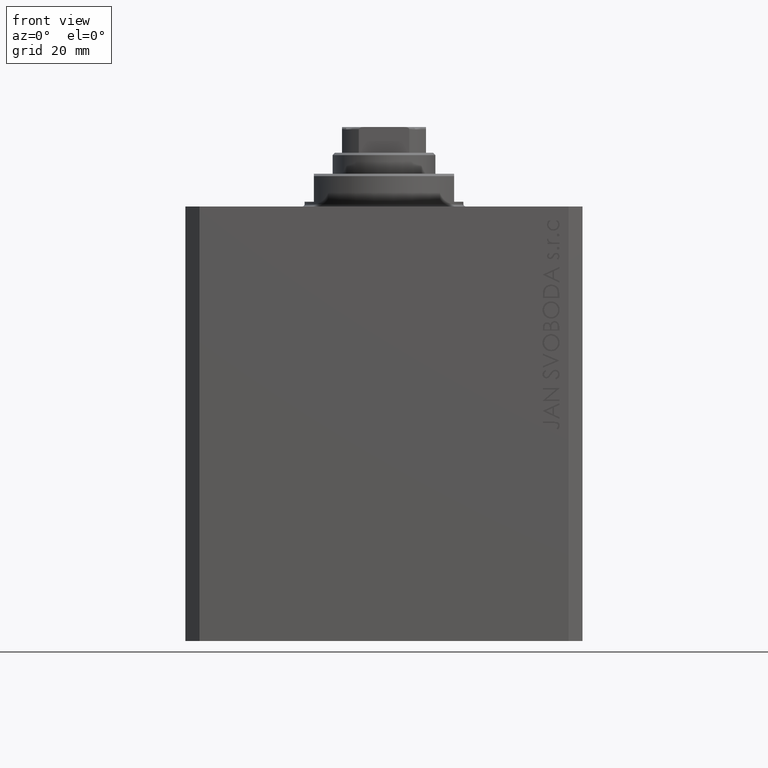
[diagram: clean part render]
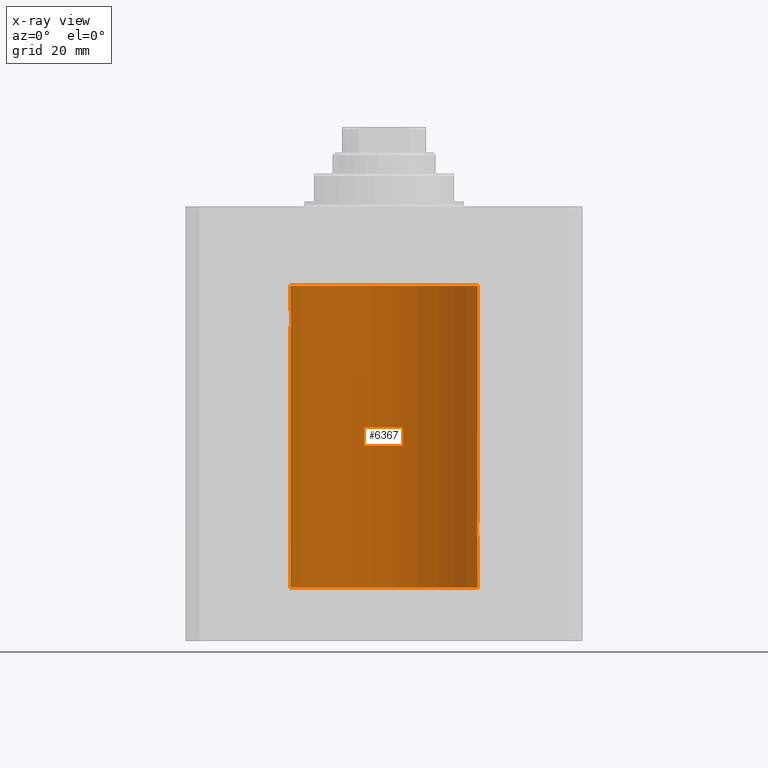
[diagram: x-ray — body ghosted, one internal face saturated and labeled with its STEP entity id]
A machine part, front view, then the same camera in x-ray: the body is ghosted and one INTERNAL B-rep face — a face not visible from any outside direction — is saturated and labeled: STEP entity #6367.
In plain terms, the highlighted cylindrical surface (partial cylindrical patch) has radius 20 mm, axis along (0, 0, 1).
Its self-contained STEP definition (entity closure, byte-faithful):
#251 = CARTESIAN_POINT ( 'NONE',  ( -20.00000000000000000, 2.449293598294706513E-15, -81.59999999999999432 ) ) ;
#529 = ORIENTED_EDGE ( 'NONE', *, *, #35956, .T. ) ;
#2824 = CARTESIAN_POINT ( 'NONE',  ( -19.99365919015135518, 0.5196544277756711683, -25.93573148867292133 ) ) ;
#3187 = EDGE_CURVE ( 'NONE', #25908, #39715, #12734, .T. ) ;
#3831 = CARTESIAN_POINT ( 'NONE',  ( 19.89974874213236689, 2.000000000000336620, -69.26114132155832692 ) ) ;
#4412 = CARTESIAN_POINT ( 'NONE',  ( 20.00000000000000000, 0.1305404422160218736, -66.99999999999998579 ) ) ;
#5270 = VECTOR ( 'NONE', #24837, 1000.000000000000000 ) ;
#5714 = CARTESIAN_POINT ( 'NONE',  ( -19.95654117037011588, 1.321069663197671273, -25.50738641543989615 ) ) ;
#6367 = ADVANCED_FACE ( 'NONE', ( #13096 ), #38172, .F. ) ;
#6397 = VERTEX_POINT ( 'NONE', #16685 ) ;
#6822 = CARTESIAN_POINT ( 'NONE',  ( 19.93681418096177183, 1.590194273034202688, -67.78006300821553509 ) ) ;
#7781 = CARTESIAN_POINT ( 'NONE',  ( 19.90980722176544049, 1.897923463361389285, -68.35574535366808391 ) ) ;
#7791 = EDGE_CURVE ( 'NONE', #13081, #31878, #31178, .T. ) ;
#8141 = EDGE_CURVE ( 'NONE', #39715, #26374, #21749, .T. ) ;
#8422 = CARTESIAN_POINT ( 'NONE',  ( 19.89974874213236333, 2.000000000000336620, -69.00000000000000000 ) ) ;
#9068 = CARTESIAN_POINT ( 'NONE',  ( -19.93679350243183990, 1.590453176650918676, -25.21960275349743696 ) ) ;
#9536 = CARTESIAN_POINT ( 'NONE',  ( -19.98998539619404013, 0.6443418861413118259, -25.89789687358865322 ) ) ;
#9769 = CARTESIAN_POINT ( 'NONE',  ( -19.90978941500366872, 1.898109641280506521, -24.64371130639850804 ) ) ;
#10010 = CARTESIAN_POINT ( 'NONE',  ( -19.90610216711450420, 1.935912154109700190, -24.51899474186111050 ) ) ;
#10456 = ORIENTED_EDGE ( 'NONE', *, *, #29283, .T. ) ;
#10607 = VECTOR ( 'NONE', #40375, 1000.000000000000000 ) ;
#10978 = CARTESIAN_POINT ( 'NONE',  ( -20.00000000000000000, 2.449293598294706513E-15, -17.00000000000000000 ) ) ;
#11132 = CARTESIAN_POINT ( 'NONE',  ( 19.89974874213236333, 2.000000000000336620, -69.00000000000000000 ) ) ;
#11273 = DIRECTION ( 'NONE',  ( 1.000000000000000000, 0.000000000000000000, 0.000000000000000000 ) ) ;
#11557 = CARTESIAN_POINT ( 'NONE',  ( 20.00000000000000000, 0.000000000000000000, -81.59999999999999432 ) ) ;
#11781 = CARTESIAN_POINT ( 'NONE',  ( 20.00000000000000000, 1.967327733996653312E-15, -71.00000000000001421 ) ) ;
#12253 = CARTESIAN_POINT ( 'NONE',  ( 19.95643710845398999, 1.322557776536547047, -70.50593841146687168 ) ) ;
#12292 = CARTESIAN_POINT ( 'NONE',  ( -20.00000000000000000, 2.449293598294706513E-15, -81.59999999999999432 ) ) ;
#12388 = ORIENTED_EDGE ( 'NONE', *, *, #8141, .F. ) ;
#12637 = CARTESIAN_POINT ( 'NONE',  ( -19.90522393307484705, 1.947330458682957177, -23.47486091545001941 ) ) ;
#12734 = CIRCLE ( 'NONE', #25727, 20.00000000000000000 ) ;
#13081 = VERTEX_POINT ( 'NONE', #39564 ) ;
#13096 = FACE_OUTER_BOUND ( 'NONE', #29619, .T. ) ;
#13117 = CARTESIAN_POINT ( 'NONE',  ( -19.90106552791689154, 1.987020435121076734, -24.26241417820002155 ) ) ;
#13351 = CARTESIAN_POINT ( 'NONE',  ( -19.95645382900617903, 1.322305185229311064, -22.49384229619286657 ) ) ;
#13590 = CARTESIAN_POINT ( 'NONE',  ( -19.92373272380676497, 1.747830109444745927, -22.99354240926169624 ) ) ;
#14688 = ORIENTED_EDGE ( 'NONE', *, *, #28885, .F. ) ;
#15840 = CARTESIAN_POINT ( 'NONE',  ( 19.98995738555794688, 0.6452086089795042723, -70.89760345360159022 ) ) ;
#15960 = B_SPLINE_CURVE_WITH_KNOTS ( 'NONE', 3,
 ( #11781, #33978, #26332, #40895, #15840, #22759, #44942, #22990, #12253, #21513, #25074, #25792, #3831, #26017 ),
 .UNSPECIFIED., .F., .F.,
 ( 4, 2, 2, 2, 2, 2, 4 ),
 ( 1.911692756536875168E-18, 0.0003911418372936038769, 0.0007822836745872059107, 0.001173425511880807782, 0.001564567349174409870, 0.002346851023761584772, 0.003129134698348759892 ),
 .UNSPECIFIED. ) ;
#16685 = CARTESIAN_POINT ( 'NONE',  ( -20.00000000000000000, -1.269718202421245235E-16, -22.00000000000000000 ) ) ;
#17812 = CARTESIAN_POINT ( 'NONE',  ( 19.98071536551674754, 0.8863972468204365240, -67.20236805399484581 ) ) ;
#17932 = LINE ( 'NONE', #32985, #5270 ) ;
#18082 = VECTOR ( 'NONE', #26137, 1000.000000000000000 ) ;
#20050 = CARTESIAN_POINT ( 'NONE',  ( -19.99867931558985745, 0.2631998640366461362, -25.98691292011447374 ) ) ;
#20512 = CARTESIAN_POINT ( 'NONE',  ( -19.97510079925438475, 1.003547732426807171, -25.73489454601984150 ) ) ;
#20985 = CARTESIAN_POINT ( 'NONE',  ( -19.94330239452387232, 1.507796451871729504, -25.32060165083834136 ) ) ;
#21396 = CARTESIAN_POINT ( 'NONE',  ( 19.96305842179988588, 1.219858681717333138, -67.40974712539563996 ) ) ;
#21513 = CARTESIAN_POINT ( 'NONE',  ( 19.93682487288204541, 1.599118048130817149, -70.22917035181221479 ) ) ;
#21749 = LINE ( 'NONE', #251, #10607 ) ;
#22337 = CARTESIAN_POINT ( 'NONE',  ( 19.91911433329477177, 1.797615436563606561, -68.11357106075777779 ) ) ;
#22759 = CARTESIAN_POINT ( 'NONE',  ( 19.98066923111604964, 0.8874387315505228857, -70.79712145220240416 ) ) ;
#22990 = CARTESIAN_POINT ( 'NONE',  ( 19.96307037068151757, 1.219701915132744841, -70.59041349350364669 ) ) ;
#23822 = DIRECTION ( 'NONE',  ( 1.000000000000000000, 0.000000000000000000, 0.000000000000000000 ) ) ;
#23862 = CARTESIAN_POINT ( 'NONE',  ( -20.00000000000000000, 2.449293582768784389E-15, -25.99999999999999645 ) ) ;
#24314 = CARTESIAN_POINT ( 'NONE',  ( -19.96308513509966787, 1.219458756546270672, -22.40940266542446935 ) ) ;
#24548 = CARTESIAN_POINT ( 'NONE',  ( -19.99370013622814568, 0.5179893069484621249, -22.06384771616670903 ) ) ;
#24837 = DIRECTION ( 'NONE',  ( -0.000000000000000000, -0.000000000000000000, 1.000000000000000000 ) ) ;
#24952 = CARTESIAN_POINT ( 'NONE',  ( 19.90107458412648711, 1.986930174329755161, -68.73692013941790435 ) ) ;
#25074 = CARTESIAN_POINT ( 'NONE',  ( 19.92371056170336274, 1.748080295468898537, -70.00603865937250703 ) ) ;
#25671 = CARTESIAN_POINT ( 'NONE',  ( 19.92473605353366040, 1.734984354167257159, -67.99660905888589468 ) ) ;
#25727 = AXIS2_PLACEMENT_3D ( 'NONE', #36589, #39928, #11273 ) ;
#25792 = CARTESIAN_POINT ( 'NONE',  ( 19.90520750556430229, 1.947496194184494378, -69.52455416993456083 ) ) ;
#25908 = VERTEX_POINT ( 'NONE', #11557 ) ;
#26017 = CARTESIAN_POINT ( 'NONE',  ( 19.89974874213236333, 2.000000000000336620, -69.00000000000000000 ) ) ;
#26137 = DIRECTION ( 'NONE',  ( -0.000000000000000000, -0.000000000000000000, 1.000000000000000000 ) ) ;
#26332 = CARTESIAN_POINT ( 'NONE',  ( 19.99868904672146641, 0.2623009746877876802, -70.98700898509812873 ) ) ;
#26370 = DIRECTION ( 'NONE',  ( 1.000000000000000000, 0.000000000000000000, 0.000000000000000000 ) ) ;
#26374 = VERTEX_POINT ( 'NONE', #23862 ) ;
#27645 = DIRECTION ( 'NONE',  ( -0.000000000000000000, -0.000000000000000000, 1.000000000000000000 ) ) ;
#28122 = VECTOR ( 'NONE', #30662, 1000.000000000000000 ) ;
#28143 = CARTESIAN_POINT ( 'NONE',  ( -20.00000000000000000, -1.269718202421245235E-16, -22.00000000000000000 ) ) ;
#28374 = ORIENTED_EDGE ( 'NONE', *, *, #3187, .F. ) ;
#28777 = CARTESIAN_POINT ( 'NONE',  ( 19.99366205580918887, 0.5195372307044503479, -67.06423906555804137 ) ) ;
#28885 = EDGE_CURVE ( 'NONE', #6397, #31878, #44981, .T. ) ;
#29283 = EDGE_CURVE ( 'NONE', #25908, #42227, #17932, .T. ) ;
#29619 = EDGE_LOOP ( 'NONE', ( #12388, #28374, #10456, #44073, #33549, #529, #42468, #14688, #41985 ) ) ;
#30662 = DIRECTION ( 'NONE',  ( -0.000000000000000000, -0.000000000000000000, 1.000000000000000000 ) ) ;
#31178 = CIRCLE ( 'NONE', #41847, 20.00000000000000000 ) ;
#31260 = CARTESIAN_POINT ( 'NONE',  ( -19.93684595445884611, 1.598854313793185655, -22.77049887769366521 ) ) ;
#31735 = CARTESIAN_POINT ( 'NONE',  ( -19.99868965376115071, 0.2622407139811102628, -22.01298505384673732 ) ) ;
#31878 = VERTEX_POINT ( 'NONE', #10978 ) ;
#31973 = CARTESIAN_POINT ( 'NONE',  ( -19.98996196681220638, 0.6450624715427617506, -22.10234886833925572 ) ) ;
#32374 = CARTESIAN_POINT ( 'NONE',  ( 19.98998987637478209, 0.6441982143731844745, -67.10205654639887030 ) ) ;
#32612 = CARTESIAN_POINT ( 'NONE',  ( 19.89974874213236689, 2.000000000000336620, -68.86948983741757502 ) ) ;
#32858 = LINE ( 'NONE', #40250, #18082 ) ;
#32985 = CARTESIAN_POINT ( 'NONE',  ( 20.00000000000000000, 0.000000000000000000, -81.59999999999999432 ) ) ;
#33549 = ORIENTED_EDGE ( 'NONE', *, *, #39678, .T. ) ;
#33978 = CARTESIAN_POINT ( 'NONE',  ( 20.00000000000000000, 0.1322642052205942886, -71.00000000000005684 ) ) ;
#34604 = CARTESIAN_POINT ( 'NONE',  ( -19.99999999999999645, 0.1322335637814733289, -21.99999999999999645 ) ) ;
#34836 = CARTESIAN_POINT ( 'NONE',  ( -19.96304379627741454, 1.220099331833899736, -25.59007067689674386 ) ) ;
#34875 = CARTESIAN_POINT ( 'NONE',  ( 20.00000000000000000, -1.553109350199128042E-23, -67.00000000000000000 ) ) ;
#35079 = CARTESIAN_POINT ( 'NONE',  ( -19.91909332229799290, 1.797847595792767317, -24.88596189455837759 ) ) ;
#35546 = CARTESIAN_POINT ( 'NONE',  ( -19.92471474456649716, 1.735228749583835439, -25.00297226784954674 ) ) ;
#35592 = CARTESIAN_POINT ( 'NONE',  ( 20.00000000000000000, 1.967327733996653312E-15, -71.00000000000001421 ) ) ;
#35954 = CARTESIAN_POINT ( 'NONE',  ( 19.97511131722831479, 1.003336743019912936, -67.26498565174387068 ) ) ;
#35956 = EDGE_CURVE ( 'NONE', #41391, #13081, #32858, .T. ) ;
#36589 = CARTESIAN_POINT ( 'NONE',  ( 0.000000000000000000, 0.000000000000000000, -81.59999999999999432 ) ) ;
#36914 = CARTESIAN_POINT ( 'NONE',  ( 19.94332236886613074, 1.507531922383789524, -67.67909949904073130 ) ) ;
#37832 = CARTESIAN_POINT ( 'NONE',  ( -20.00000000000000000, 2.449293598294706513E-15, -81.59999999999999432 ) ) ;
#38172 = CYLINDRICAL_SURFACE ( 'NONE', #44094, 20.00000000000000000 ) ;
#38193 = CARTESIAN_POINT ( 'NONE',  ( -19.89974399317116394, 2.000047251570890250, -24.12981181290706445 ) ) ;
#38880 = CARTESIAN_POINT ( 'NONE',  ( 0.000000000000000000, 0.000000000000000000, -81.59999999999999432 ) ) ;
#39135 = CARTESIAN_POINT ( 'NONE',  ( -20.00000000000000000, 2.449293582768784389E-15, -25.99999999999999645 ) ) ;
#39564 = CARTESIAN_POINT ( 'NONE',  ( 20.00000000000000000, 0.000000000000000000, -17.00000000000000000 ) ) ;
#39678 = EDGE_CURVE ( 'NONE', #44104, #41391, #44447, .T. ) ;
#39715 = VERTEX_POINT ( 'NONE', #37832 ) ;
#39928 = DIRECTION ( 'NONE',  ( 0.000000000000000000, 0.000000000000000000, 1.000000000000000000 ) ) ;
#40250 = CARTESIAN_POINT ( 'NONE',  ( 20.00000000000000000, 0.000000000000000000, -81.59999999999999432 ) ) ;
#40375 = DIRECTION ( 'NONE',  ( -0.000000000000000000, -0.000000000000000000, 1.000000000000000000 ) ) ;
#40492 = CARTESIAN_POINT ( 'NONE',  ( 19.90611763847108762, 1.935753518394741635, -68.48042243434849752 ) ) ;
#40895 = CARTESIAN_POINT ( 'NONE',  ( 19.99369727434158506, 0.5181068333511539281, -70.93612288282997724 ) ) ;
#41391 = VERTEX_POINT ( 'NONE', #34875 ) ;
#41763 = CARTESIAN_POINT ( 'NONE',  ( -19.98067755938510714, 0.8872481584516758168, -22.20278656943303375 ) ) ;
#41821 = DIRECTION ( 'NONE',  ( 0.000000000000000000, 0.000000000000000000, 1.000000000000000000 ) ) ;
#41847 = AXIS2_PLACEMENT_3D ( 'NONE', #44513, #41821, #26370 ) ;
#41985 = ORIENTED_EDGE ( 'NONE', *, *, #43217, .T. ) ;
#42227 = VERTEX_POINT ( 'NONE', #35592 ) ;
#42230 = CARTESIAN_POINT ( 'NONE',  ( -19.98070694681040038, 0.8865903856744316025, -25.79753901127162763 ) ) ;
#42468 = ORIENTED_EDGE ( 'NONE', *, *, #7791, .T. ) ;
#42704 = CARTESIAN_POINT ( 'NONE',  ( -19.99999999999999645, 0.1305706983324449733, -25.99999999999998934 ) ) ;
#43217 = EDGE_CURVE ( 'NONE', #6397, #26374, #43435, .T. ) ;
#43344 = CARTESIAN_POINT ( 'NONE',  ( 19.99867993937906618, 0.2631387813862826053, -67.01308095003093968 ) ) ;
#43435 = B_SPLINE_CURVE_WITH_KNOTS ( 'NONE', 3,
 ( #28143, #34604, #31735, #24548, #31973, #41763, #46267, #24314, #13351, #31260, #13590, #12637, #45807, #38193, #13117, #10010, #9769, #35079, #35546, #9068, #20985, #5714, #34836, #20512, #42230, #9536, #2824, #20050, #42704, #39135 ),
 .UNSPECIFIED., .F., .F.,
 ( 4, 2, 2, 2, 2, 2, 2, 2, 2, 2, 2, 2, 2, 2, 4 ),
 ( 1.233811249882840126E-19, 0.0003910512220831129202, 0.0007821024441662257319, 0.001173153666249338381, 0.001564204888332450813, 0.002346307332498675461, 0.003128409776664900326, 0.003519460998748018179, 0.003910512220831135165, 0.004301563442914253452, 0.004692614664997370871, 0.005083665887080488291, 0.005474717109163606578, 0.005865768331246723997, 0.006256819553329842284 ),
 .UNSPECIFIED. ) ;
#44073 = ORIENTED_EDGE ( 'NONE', *, *, #46016, .T. ) ;
#44094 = AXIS2_PLACEMENT_3D ( 'NONE', #38880, #27645, #23822 ) ;
#44104 = VERTEX_POINT ( 'NONE', #8422 ) ;
#44447 = B_SPLINE_CURVE_WITH_KNOTS ( 'NONE', 3,
 ( #11132, #32612, #24952, #40492, #7781, #22337, #25671, #6822, #36914, #47154, #21396, #35954, #17812, #32374, #28777, #43344, #4412, #45213 ),
 .UNSPECIFIED., .F., .F.,
 ( 4, 2, 2, 2, 2, 2, 2, 2, 4 ),
 ( 0.003129134698348759892, 0.003520095305221480463, 0.003911055912094201469, 0.004302016518966922040, 0.004692977125839642612, 0.005083937732712363183, 0.005474898339585083755, 0.005865858946457804327, 0.006256819553330524898 ),
 .UNSPECIFIED. ) ;
#44513 = CARTESIAN_POINT ( 'NONE',  ( 0.000000000000000000, 0.000000000000000000, -17.00000000000000000 ) ) ;
#44942 = CARTESIAN_POINT ( 'NONE',  ( 19.97516523393783316, 1.002309963754524524, -70.73564471556110789 ) ) ;
#44981 = LINE ( 'NONE', #12292, #28122 ) ;
#45213 = CARTESIAN_POINT ( 'NONE',  ( 20.00000000000000000, -1.553109350199128042E-23, -67.00000000000000000 ) ) ;
#45807 = CARTESIAN_POINT ( 'NONE',  ( -19.89975827978156175, 1.999905101582726719, -23.73819846102561115 ) ) ;
#46016 = EDGE_CURVE ( 'NONE', #42227, #44104, #15960, .T. ) ;
#46267 = CARTESIAN_POINT ( 'NONE',  ( -19.97517568592526160, 1.002099838626314909, -22.26423634872104884 ) ) ;
#47154 = CARTESIAN_POINT ( 'NONE',  ( 19.95655800881796083, 1.320814917468111194, -67.49239309359697359 ) ) ;